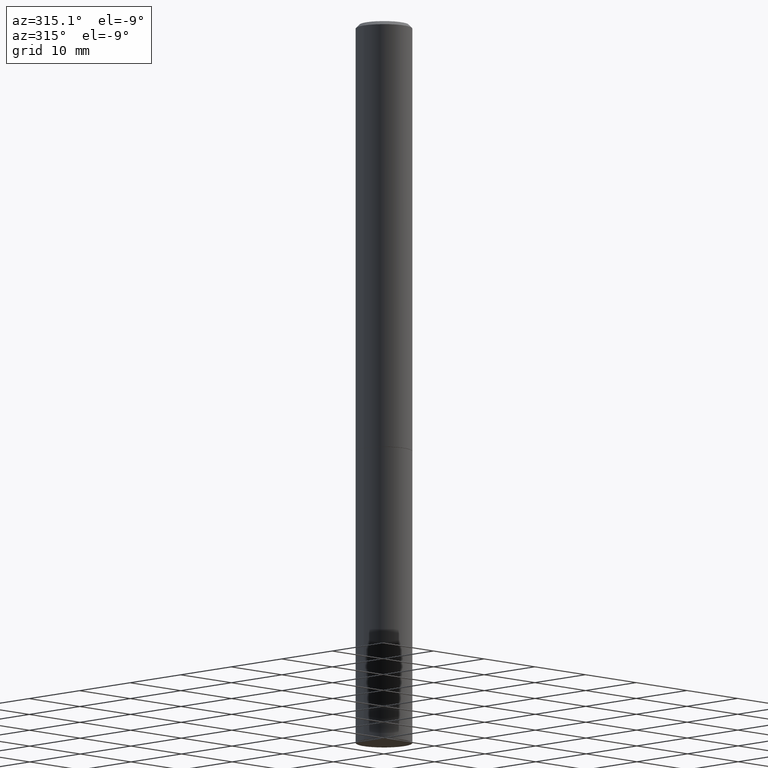
[diagram: clean part render]
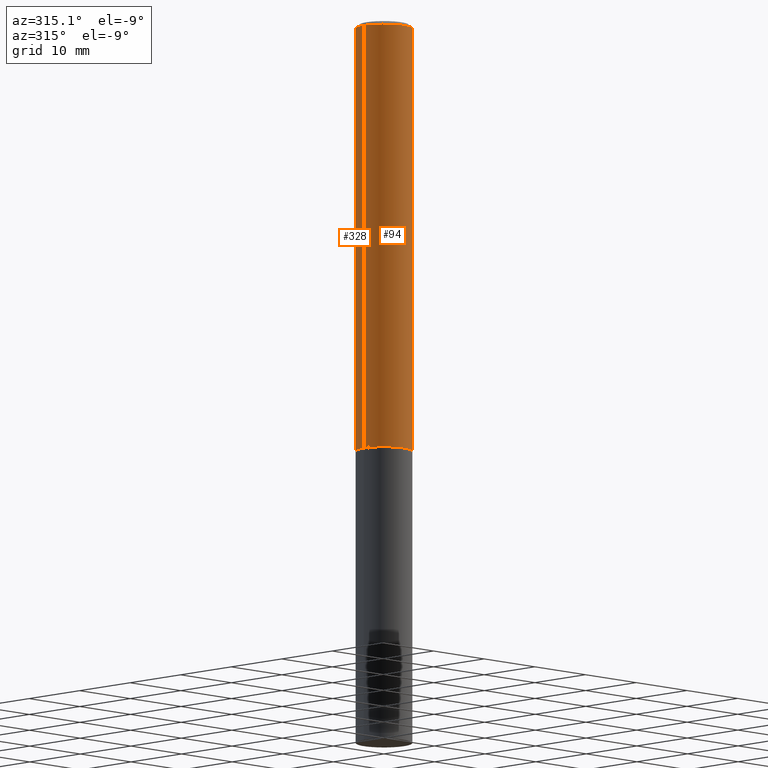
[diagram: same view with one multi-face feature highlighted, each face labeled with its STEP entity id]
A machine part, auxiliary view. The highlighted faces form ONE feature: a constant-radius fillet chain: 2 tangent blend faces with common blend radius 3.9687 mm. The faces share edges in the B-rep.
Their STEP definitions:
[1] entity #328 (Cylinder):
#1 = DIRECTION ( 'NONE',  ( 1.000000000000000000, -6.982962677686267499E-15, 0.000000000000000000 ) ) ;
#14 = CARTESIAN_POINT ( 'NONE',  ( -0.1562500000000000000, -3.069080137970085114E-15, -2.373999999999999666 ) ) ;
#18 = VECTOR ( 'NONE', #389, 39.37007874015748143 ) ;
#19 = ORIENTED_EDGE ( 'NONE', *, *, #105, .F. ) ;
#23 = EDGE_LOOP ( 'NONE', ( #196, #295, #176, #19 ) ) ;
#38 = EDGE_CURVE ( 'NONE', #286, #86, #149, .T. ) ;
#40 = VERTEX_POINT ( 'NONE', #58 ) ;
#44 = FACE_OUTER_BOUND ( 'NONE', #23, .T. ) ;
#58 = CARTESIAN_POINT ( 'NONE',  ( 0.1562499999999996947, -1.141782438928662738E-15, -0.02000000000000003511 ) ) ;
#86 = VERTEX_POINT ( 'NONE', #14 ) ;
#91 = LINE ( 'NONE', #211, #18 ) ;
#95 = AXIS2_PLACEMENT_3D ( 'NONE', #278, #273, #1 ) ;
#105 = EDGE_CURVE ( 'NONE', #286, #40, #91, .T. ) ;
#107 = CARTESIAN_POINT ( 'NONE',  ( 0.000000000000000000, 0.000000000000000000, 0.000000000000000000 ) ) ;
#113 = DIRECTION ( 'NONE',  ( -2.445468806185136597E-29, 3.491481338843145583E-15, 1.000000000000000000 ) ) ;
#137 = CARTESIAN_POINT ( 'NONE',  ( 0.1562500000000000000, -9.379864616802105495E-15, -2.373999999999999666 ) ) ;
#149 = CIRCLE ( 'NONE', #341, 0.1562500000000000000 ) ;
#162 = LINE ( 'NONE', #283, #343 ) ;
#164 = EDGE_CURVE ( 'NONE', #40, #329, #303, .T. ) ;
#176 = ORIENTED_EDGE ( 'NONE', *, *, #164, .F. ) ;
#177 = DIRECTION ( 'NONE',  ( 1.000000000000000000, -6.982962677686262766E-15, 0.000000000000000000 ) ) ;
#196 = ORIENTED_EDGE ( 'NONE', *, *, #38, .T. ) ;
#211 = CARTESIAN_POINT ( 'NONE',  ( 0.1562499999999998612, -1.091087918388478187E-15, 7.619026212181143371E-30 ) ) ;
#222 = DIRECTION ( 'NONE',  ( 1.000000000000000000, -6.982962677686266711E-15, 4.876176775795936353E-29 ) ) ;
#253 = DIRECTION ( 'NONE',  ( -2.445468806185136597E-29, 3.491481338843145583E-15, 1.000000000000000000 ) ) ;
#254 = CYLINDRICAL_SURFACE ( 'NONE', #359, 0.1562499999999998612 ) ;
#271 = EDGE_CURVE ( 'NONE', #86, #329, #162, .T. ) ;
#273 = DIRECTION ( 'NONE',  ( -2.445468806185136597E-29, 3.491481338843145583E-15, 1.000000000000000000 ) ) ;
#278 = CARTESIAN_POINT ( 'NONE',  ( 4.890937612370281041E-31, -6.982962677686302702E-17, -0.02000000000000003511 ) ) ;
#283 = CARTESIAN_POINT ( 'NONE',  ( -0.1562499999999998612, 1.110223024625155554E-15, -7.685836078523284153E-30 ) ) ;
#286 = VERTEX_POINT ( 'NONE', #137 ) ;
#295 = ORIENTED_EDGE ( 'NONE', *, *, #271, .T. ) ;
#303 = CIRCLE ( 'NONE', #95, 0.1562499999999996947 ) ;
#308 = DIRECTION ( 'NONE',  ( -2.445468806185136877E-29, 3.491481338843145188E-15, 1.000000000000000000 ) ) ;
#320 = CARTESIAN_POINT ( 'NONE',  ( 5.805542945883513814E-29, -8.288776698413627111E-15, -2.373999999999999666 ) ) ;
#328 = ADVANCED_FACE ( 'NONE', ( #44 ), #254, .T. ) ;
#329 = VERTEX_POINT ( 'NONE', #375 ) ;
#341 = AXIS2_PLACEMENT_3D ( 'NONE', #320, #113, #177 ) ;
#343 = VECTOR ( 'NONE', #308, 39.37007874015748143 ) ;
#359 = AXIS2_PLACEMENT_3D ( 'NONE', #107, #253, #222 ) ;
#375 = CARTESIAN_POINT ( 'NONE',  ( -0.1562499999999996947, 1.021258291611614100E-15, -0.02000000000000003511 ) ) ;
#389 = DIRECTION ( 'NONE',  ( -2.445468806185136877E-29, 3.491481338843145188E-15, 1.000000000000000000 ) ) ;
[2] entity #94 (Cylinder):
#12 = DIRECTION ( 'NONE',  ( 1.000000000000000000, -6.982962677686267499E-15, 0.000000000000000000 ) ) ;
#14 = CARTESIAN_POINT ( 'NONE',  ( -0.1562500000000000000, -3.069080137970085114E-15, -2.373999999999999666 ) ) ;
#16 = EDGE_CURVE ( 'NONE', #86, #286, #88, .T. ) ;
#18 = VECTOR ( 'NONE', #389, 39.37007874015748143 ) ;
#31 = FACE_OUTER_BOUND ( 'NONE', #361, .T. ) ;
#33 = CARTESIAN_POINT ( 'NONE',  ( 0.000000000000000000, 0.000000000000000000, 0.000000000000000000 ) ) ;
#40 = VERTEX_POINT ( 'NONE', #58 ) ;
#58 = CARTESIAN_POINT ( 'NONE',  ( 0.1562499999999996947, -1.141782438928662738E-15, -0.02000000000000003511 ) ) ;
#64 = AXIS2_PLACEMENT_3D ( 'NONE', #237, #144, #263 ) ;
#78 = ORIENTED_EDGE ( 'NONE', *, *, #16, .T. ) ;
#86 = VERTEX_POINT ( 'NONE', #14 ) ;
#88 = CIRCLE ( 'NONE', #64, 0.1562500000000000000 ) ;
#91 = LINE ( 'NONE', #211, #18 ) ;
#94 = ADVANCED_FACE ( 'NONE', ( #31 ), #270, .T. ) ;
#105 = EDGE_CURVE ( 'NONE', #286, #40, #91, .T. ) ;
#121 = DIRECTION ( 'NONE',  ( -2.445468806185136597E-29, 3.491481338843145583E-15, 1.000000000000000000 ) ) ;
#133 = AXIS2_PLACEMENT_3D ( 'NONE', #33, #121, #332 ) ;
#137 = CARTESIAN_POINT ( 'NONE',  ( 0.1562500000000000000, -9.379864616802105495E-15, -2.373999999999999666 ) ) ;
#144 = DIRECTION ( 'NONE',  ( -2.445468806185136597E-29, 3.491481338843145583E-15, 1.000000000000000000 ) ) ;
#162 = LINE ( 'NONE', #283, #343 ) ;
#168 = CARTESIAN_POINT ( 'NONE',  ( 4.890937612370281041E-31, -6.982962677686302702E-17, -0.02000000000000003511 ) ) ;
#169 = ORIENTED_EDGE ( 'NONE', *, *, #105, .T. ) ;
#205 = ORIENTED_EDGE ( 'NONE', *, *, #271, .F. ) ;
#211 = CARTESIAN_POINT ( 'NONE',  ( 0.1562499999999998612, -1.091087918388478187E-15, 7.619026212181143371E-30 ) ) ;
#217 = DIRECTION ( 'NONE',  ( -2.445468806185136597E-29, 3.491481338843145583E-15, 1.000000000000000000 ) ) ;
#218 = EDGE_CURVE ( 'NONE', #329, #40, #220, .T. ) ;
#219 = ORIENTED_EDGE ( 'NONE', *, *, #218, .F. ) ;
#220 = CIRCLE ( 'NONE', #323, 0.1562499999999996947 ) ;
#237 = CARTESIAN_POINT ( 'NONE',  ( 5.805542945883513814E-29, -8.288776698413627111E-15, -2.373999999999999666 ) ) ;
#263 = DIRECTION ( 'NONE',  ( 1.000000000000000000, -6.982962677686262766E-15, 0.000000000000000000 ) ) ;
#270 = CYLINDRICAL_SURFACE ( 'NONE', #133, 0.1562499999999998612 ) ;
#271 = EDGE_CURVE ( 'NONE', #86, #329, #162, .T. ) ;
#283 = CARTESIAN_POINT ( 'NONE',  ( -0.1562499999999998612, 1.110223024625155554E-15, -7.685836078523284153E-30 ) ) ;
#286 = VERTEX_POINT ( 'NONE', #137 ) ;
#308 = DIRECTION ( 'NONE',  ( -2.445468806185136877E-29, 3.491481338843145188E-15, 1.000000000000000000 ) ) ;
#323 = AXIS2_PLACEMENT_3D ( 'NONE', #168, #217, #12 ) ;
#329 = VERTEX_POINT ( 'NONE', #375 ) ;
#332 = DIRECTION ( 'NONE',  ( 1.000000000000000000, -6.982962677686266711E-15, 4.876176775795936353E-29 ) ) ;
#343 = VECTOR ( 'NONE', #308, 39.37007874015748143 ) ;
#361 = EDGE_LOOP ( 'NONE', ( #205, #78, #169, #219 ) ) ;
#375 = CARTESIAN_POINT ( 'NONE',  ( -0.1562499999999996947, 1.021258291611614100E-15, -0.02000000000000003511 ) ) ;
#389 = DIRECTION ( 'NONE',  ( -2.445468806185136877E-29, 3.491481338843145188E-15, 1.000000000000000000 ) ) ;